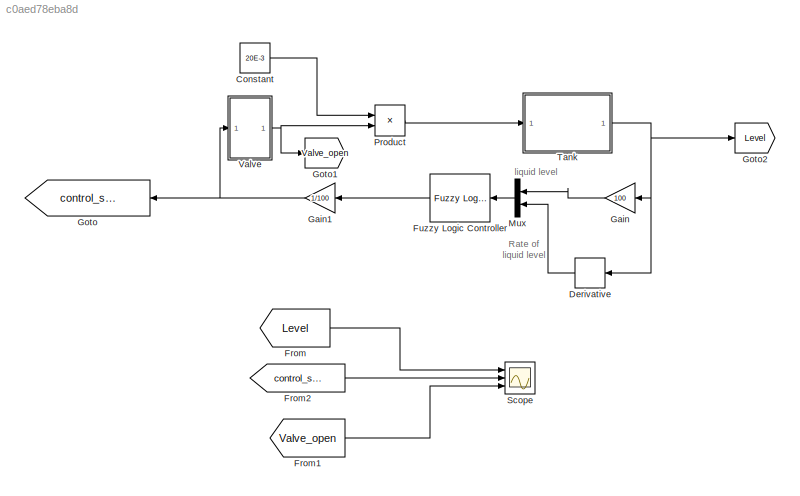
MODEL slx_c0aed78eba8d
KIND model
BLOCK [Constant] Constant
  Value = 20E-3
BLOCK [Derivative] Derivative
BLOCK [From] From
  GotoTag = Level
BLOCK [From] From1
  GotoTag = Valve_open
BLOCK [From] From2
  GotoTag = control_signal
BLOCK [Reference] Fuzzy Logic Controller  REF=fuzblock/Fuzzy Logic   (lib defined in mdl_858b3b3e7478)
Controller
  Ports = [1, 1]
  SourceBlock = fuzblock/Fuzzy Logic \nController
  SourceType = FIS
  fis = ['Tank_level_system2.fis']
BLOCK [Gain] Gain
  Gain = 100
  OutDataTypeStr = Inherit: Inherit via internal rule
  ParamDataTypeStr = Inherit: Inherit via internal rule
  SaturateOnIntegerOverflow = off
BLOCK [Gain] Gain1
  Gain = 1/100
  OutDataTypeStr = Inherit: Inherit via internal rule
  ParamDataTypeStr = Inherit: Inherit via internal rule
  SaturateOnIntegerOverflow = off
BLOCK [Goto] Goto
  GotoTag = control_signal
BLOCK [Goto] Goto1
  GotoTag = Valve_open
BLOCK [Goto] Goto2
  GotoTag = Level
BLOCK [Mux] Mux
  DisplayOption = bar
  Inputs = 2
  Ports = [2, 1]
BLOCK [Product] Product
  InputSameDT = off
  OutDataTypeStr = Inherit: Inherit via internal rule
  Ports = [2, 1]
  RndMeth = Floor
  SaturateOnIntegerOverflow = off
BLOCK [Scope] Scope
  DataFormat = StructureWithTime
  Floating = off
  NumInputPorts = 3
  Ports = [3]
  SampleTime = 0
  ShowLegends = off
  YMax = 5~5~5
  YMin = -5~-5~-5
  ZoomMode = xonly
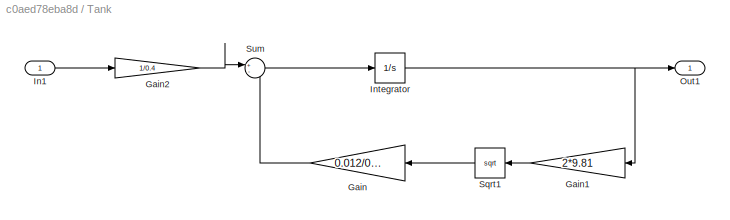
BLOCK [SubSystem] Tank
  FunctionWithSeparateData = off
  MaskHideContents = off
  MinAlgLoopOccurrences = off
  Opaque = off
  Ports = [1, 1]
  PropExecContextOutsideSubsystem = off
  RTWSystemCode = Auto
  RequestExecContextInheritance = off
BLOCK [Gain] Tank/Gain
  Gain = 0.012/0.4
  OutDataTypeStr = Inherit: Inherit via internal rule
  ParamDataTypeStr = Inherit: Inherit via internal rule
  SaturateOnIntegerOverflow = off
BLOCK [Gain] Tank/Gain1
  Gain = 2*9.81
  OutDataTypeStr = Inherit: Inherit via internal rule
  ParamDataTypeStr = Inherit: Inherit via internal rule
  SaturateOnIntegerOverflow = off
BLOCK [Gain] Tank/Gain2
  Gain = 1/0.4
  OutDataTypeStr = Inherit: Inherit via internal rule
  ParamDataTypeStr = Inherit: Inherit via internal rule
  SaturateOnIntegerOverflow = off
BLOCK [Inport] Tank/In1
  IconDisplay = Port number
BLOCK [Integrator] Tank/Integrator
  Ports = [1, 1]
BLOCK [Outport] Tank/Out1
  IconDisplay = Port number
BLOCK [Sqrt] Tank/Sqrt1
BLOCK [Sum] Tank/Sum
  IconShape = round
  InputSameDT = off
  Inputs = +-
  OutDataTypeStr = Inherit: Inherit via internal rule
  Ports = [2, 1]
  SaturateOnIntegerOverflow = off
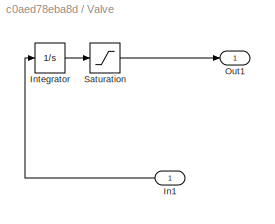
BLOCK [SubSystem] Valve
  FunctionWithSeparateData = off
  MaskHideContents = off
  MinAlgLoopOccurrences = off
  Opaque = off
  Ports = [1, 1]
  PropExecContextOutsideSubsystem = off
  RTWSystemCode = Auto
  RequestExecContextInheritance = off
BLOCK [Inport] Valve/In1
  IconDisplay = Port number
BLOCK [Integrator] Valve/Integrator
  Ports = [1, 1]
BLOCK [Outport] Valve/Out1
  IconDisplay = Port number
BLOCK [Saturate] Valve/Saturation
  InputPortMap = u0
  LowerLimit = 0
  Ports = [1, 1]
  UpperLimit = 1
ANNOTATION (root): Rate of liquid level
ANNOTATION (root): liquid level
LINE Constant:1 -> Product:1
LINE Derivative:1 -> Mux:2
LINE From1:1 -> Scope:3
LINE From2:1 -> Scope:2
LINE From:1 -> Scope:1
LINE Fuzzy Logic Controller:1 -> Gain1:1
NET Gain1:1 -> Goto:1, Valve:1
LINE Gain:1 -> Mux:1
LINE Mux:1 -> Fuzzy Logic Controller:1
LINE Product:1 -> Tank:1
LINE Tank/Gain1:1 -> Tank/Sqrt1:1
LINE Tank/Gain2:1 -> Tank/Sum:1
LINE Tank/Gain:1 -> Tank/Sum:2
LINE Tank/In1:1 -> Tank/Gain2:1
NET Tank/Integrator:1 -> Tank/Gain1:1, Tank/Out1:1
LINE Tank/Sqrt1:1 -> Tank/Gain:1
LINE Tank/Sum:1 -> Tank/Integrator:1
NET Tank:1 -> Derivative:1, Gain:1, Goto2:1
LINE Valve/In1:1 -> Valve/Integrator:1
LINE Valve/Integrator:1 -> Valve/Saturation:1
LINE Valve/Saturation:1 -> Valve/Out1:1
NET Valve:1 -> Goto1:1, Product:2
note: NET lines group one-source signal fan-out (src -> all destinations, sorted); 1:1 wires keep LINE
